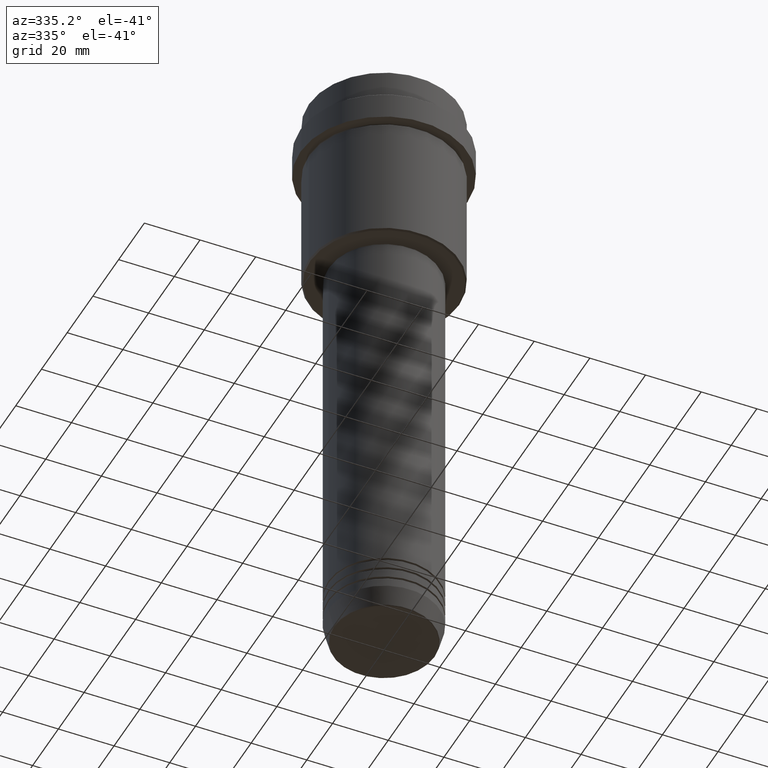
[diagram: clean part render]
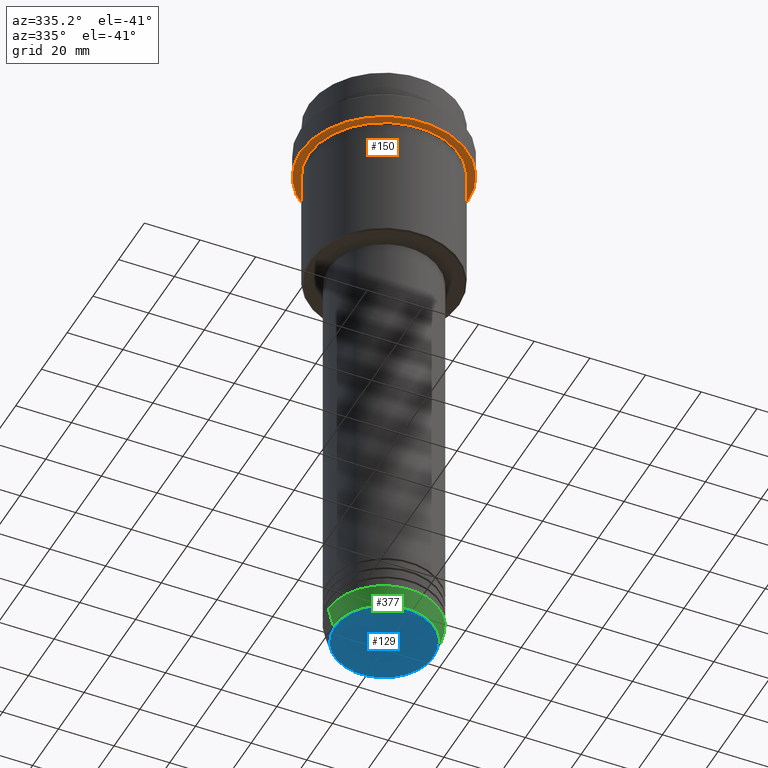
[diagram: same view with three faces highlighted in distinct colors, each labeled with its STEP entity id]
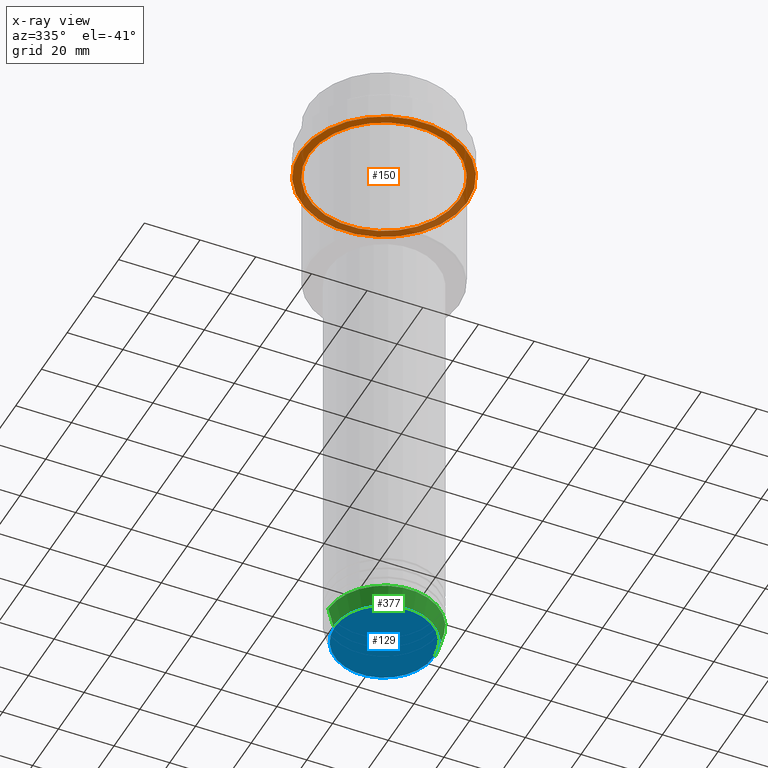
[diagram: x-ray of the same camera — body ghosted, the three highlighted faces saturated]
A machine part, auxiliary view with three faces highlighted in distinct colors.
The next image is the same camera in x-ray (body ghosted, the three faces saturated) — at least one of them is partly hidden behind the body in this view.
Their STEP definitions:

[orange] entity #150 — the highlighted planar face has unit normal (0, 0, -1).
#15 = CIRCLE ( 'NONE', #785, 26.99999999999999289 ) ;
#65 = DIRECTION ( 'NONE',  ( 1.000000000000000000, 0.000000000000000000, 0.000000000000000000 ) ) ;
#76 = CARTESIAN_POINT ( 'NONE',  ( 0.000000000000000000, 0.000000000000000000, -22.00000000000000355 ) ) ;
#104 = ORIENTED_EDGE ( 'NONE', *, *, #400, .T. ) ;
#150 = ADVANCED_FACE ( 'NONE', ( #1247, #1132 ), #355, .T. ) ;
#205 = DIRECTION ( 'NONE',  ( 1.000000000000000000, 0.000000000000000000, 0.000000000000000000 ) ) ;
#222 = DIRECTION ( 'NONE',  ( -1.000000000000000000, 0.000000000000000000, -0.000000000000000000 ) ) ;
#315 = CARTESIAN_POINT ( 'NONE',  ( -29.99999999999999645, 3.673940397442058389E-15, -22.00000000000000355 ) ) ;
#355 = PLANE ( 'NONE',  #1004 ) ;
#373 = CARTESIAN_POINT ( 'NONE',  ( 26.99999999999999289, 3.306546357697852944E-15, -22.00000000000000000 ) ) ;
#400 = EDGE_CURVE ( 'NONE', #1360, #933, #15, .T. ) ;
#408 = VERTEX_POINT ( 'NONE', #745 ) ;
#448 = ORIENTED_EDGE ( 'NONE', *, *, #1216, .T. ) ;
#468 = EDGE_CURVE ( 'NONE', #408, #843, #1175, .T. ) ;
#484 = CIRCLE ( 'NONE', #1291, 26.99999999999999289 ) ;
#516 = DIRECTION ( 'NONE',  ( -0.000000000000000000, -0.000000000000000000, 1.000000000000000000 ) ) ;
#533 = CARTESIAN_POINT ( 'NONE',  ( 0.000000000000000000, 0.000000000000000000, -22.00000000000000000 ) ) ;
#547 = AXIS2_PLACEMENT_3D ( 'NONE', #1167, #1035, #65 ) ;
#687 = EDGE_LOOP ( 'NONE', ( #1087, #1185 ) ) ;
#691 = AXIS2_PLACEMENT_3D ( 'NONE', #76, #955, #205 ) ;
#745 = CARTESIAN_POINT ( 'NONE',  ( 29.99999999999999645, 0.000000000000000000, -22.00000000000000355 ) ) ;
#785 = AXIS2_PLACEMENT_3D ( 'NONE', #533, #1301, #935 ) ;
#787 = EDGE_CURVE ( 'NONE', #843, #408, #1169, .T. ) ;
#843 = VERTEX_POINT ( 'NONE', #315 ) ;
#933 = VERTEX_POINT ( 'NONE', #373 ) ;
#935 = DIRECTION ( 'NONE',  ( -1.000000000000000000, 0.000000000000000000, 0.000000000000000000 ) ) ;
#949 = EDGE_LOOP ( 'NONE', ( #104, #448 ) ) ;
#955 = DIRECTION ( 'NONE',  ( -0.000000000000000000, -0.000000000000000000, 1.000000000000000000 ) ) ;
#1004 = AXIS2_PLACEMENT_3D ( 'NONE', #1362, #1211, #222 ) ;
#1021 = DIRECTION ( 'NONE',  ( -1.000000000000000000, 0.000000000000000000, 0.000000000000000000 ) ) ;
#1035 = DIRECTION ( 'NONE',  ( -0.000000000000000000, -0.000000000000000000, 1.000000000000000000 ) ) ;
#1055 = CARTESIAN_POINT ( 'NONE',  ( 0.000000000000000000, 0.000000000000000000, -22.00000000000000000 ) ) ;
#1087 = ORIENTED_EDGE ( 'NONE', *, *, #468, .F. ) ;
#1132 = FACE_OUTER_BOUND ( 'NONE', #687, .T. ) ;
#1160 = CARTESIAN_POINT ( 'NONE',  ( -26.99999999999999289, 0.000000000000000000, -22.00000000000000000 ) ) ;
#1167 = CARTESIAN_POINT ( 'NONE',  ( 0.000000000000000000, 0.000000000000000000, -22.00000000000000355 ) ) ;
#1169 = CIRCLE ( 'NONE', #547, 29.99999999999999645 ) ;
#1175 = CIRCLE ( 'NONE', #691, 29.99999999999999645 ) ;
#1185 = ORIENTED_EDGE ( 'NONE', *, *, #787, .F. ) ;
#1211 = DIRECTION ( 'NONE',  ( 0.000000000000000000, 0.000000000000000000, -1.000000000000000000 ) ) ;
#1216 = EDGE_CURVE ( 'NONE', #933, #1360, #484, .T. ) ;
#1247 = FACE_BOUND ( 'NONE', #949, .T. ) ;
#1291 = AXIS2_PLACEMENT_3D ( 'NONE', #1055, #516, #1021 ) ;
#1301 = DIRECTION ( 'NONE',  ( -0.000000000000000000, -0.000000000000000000, 1.000000000000000000 ) ) ;
#1360 = VERTEX_POINT ( 'NONE', #1160 ) ;
#1362 = CARTESIAN_POINT ( 'NONE',  ( 0.000000000000000000, 29.99999999999999645, -22.00000000000000000 ) ) ;

[blue] entity #129 — the highlighted planar face has unit normal (0, -0, 1).
#30 = PLANE ( 'NONE',  #594 ) ;
#50 = CIRCLE ( 'NONE', #847, 17.74069215899265473 ) ;
#79 = CARTESIAN_POINT ( 'NONE',  ( 0.000000000000000000, 0.000000000000000000, -222.9999999999999716 ) ) ;
#129 = ADVANCED_FACE ( 'NONE', ( #1140 ), #30, .F. ) ;
#359 = CARTESIAN_POINT ( 'NONE',  ( -17.74069215899265473, 2.202181136001357170E-15, -222.9999999999999716 ) ) ;
#466 = CARTESIAN_POINT ( 'NONE',  ( 0.000000000000000000, 0.000000000000000000, -222.9999999999999716 ) ) ;
#508 = DIRECTION ( 'NONE',  ( 1.000000000000000000, 0.000000000000000000, 0.000000000000000000 ) ) ;
#559 = CARTESIAN_POINT ( 'NONE',  ( 17.74069215899265473, 0.000000000000000000, -222.9999999999999716 ) ) ;
#586 = DIRECTION ( 'NONE',  ( 1.000000000000000000, 0.000000000000000000, 0.000000000000000000 ) ) ;
#594 = AXIS2_PLACEMENT_3D ( 'NONE', #466, #919, #794 ) ;
#610 = CARTESIAN_POINT ( 'NONE',  ( 0.000000000000000000, 0.000000000000000000, -222.9999999999999716 ) ) ;
#645 = VERTEX_POINT ( 'NONE', #559 ) ;
#688 = AXIS2_PLACEMENT_3D ( 'NONE', #79, #1282, #508 ) ;
#737 = CIRCLE ( 'NONE', #688, 17.74069215899265473 ) ;
#749 = VERTEX_POINT ( 'NONE', #359 ) ;
#788 = EDGE_LOOP ( 'NONE', ( #1030, #1137 ) ) ;
#794 = DIRECTION ( 'NONE',  ( 1.000000000000000000, 0.000000000000000000, 0.000000000000000000 ) ) ;
#847 = AXIS2_PLACEMENT_3D ( 'NONE', #610, #1135, #586 ) ;
#919 = DIRECTION ( 'NONE',  ( 0.000000000000000000, -0.000000000000000000, 1.000000000000000000 ) ) ;
#995 = EDGE_CURVE ( 'NONE', #645, #749, #737, .T. ) ;
#1030 = ORIENTED_EDGE ( 'NONE', *, *, #995, .T. ) ;
#1135 = DIRECTION ( 'NONE',  ( 0.000000000000000000, 0.000000000000000000, -1.000000000000000000 ) ) ;
#1137 = ORIENTED_EDGE ( 'NONE', *, *, #1230, .T. ) ;
#1140 = FACE_OUTER_BOUND ( 'NONE', #788, .T. ) ;
#1230 = EDGE_CURVE ( 'NONE', #749, #645, #50, .T. ) ;
#1282 = DIRECTION ( 'NONE',  ( 0.000000000000000000, 0.000000000000000000, -1.000000000000000000 ) ) ;

[green] entity #377 — the highlighted conical surface has half-angle 15 deg.
#35 = ORIENTED_EDGE ( 'NONE', *, *, #185, .T. ) ;
#70 = DIRECTION ( 'NONE',  ( -0.2588190451025213501, 3.169619151431772337E-17, 0.9659258262890680902 ) ) ;
#90 = DIRECTION ( 'NONE',  ( 0.2588190451025213501, 0.000000000000000000, 0.9659258262890680902 ) ) ;
#115 = CIRCLE ( 'NONE', #909, 20.00000000000000000 ) ;
#160 = LINE ( 'NONE', #1363, #1293 ) ;
#185 = EDGE_CURVE ( 'NONE', #1227, #944, #297, .T. ) ;
#217 = ORIENTED_EDGE ( 'NONE', *, *, #1074, .T. ) ;
#297 = LINE ( 'NONE', #960, #1240 ) ;
#304 = CONICAL_SURFACE ( 'NONE', #1025, 20.00000000000000000, 0.2617993877991500740 ) ;
#334 = CARTESIAN_POINT ( 'NONE',  ( 0.000000000000000000, 0.000000000000000000, -215.9999999999999716 ) ) ;
#344 = CARTESIAN_POINT ( 'NONE',  ( -20.00000000000000000, 2.449293598294706513E-15, -215.9999999999999716 ) ) ;
#377 = ADVANCED_FACE ( 'NONE', ( #1077 ), #304, .T. ) ;
#405 = ORIENTED_EDGE ( 'NONE', *, *, #849, .F. ) ;
#455 = CARTESIAN_POINT ( 'NONE',  ( 0.000000000000000000, 0.000000000000000000, -215.9999999999999716 ) ) ;
#673 = VERTEX_POINT ( 'NONE', #344 ) ;
#679 = CARTESIAN_POINT ( 'NONE',  ( -18.22365507213718772, 2.340523841790264718E-15, -222.6294095225512137 ) ) ;
#698 = CARTESIAN_POINT ( 'NONE',  ( 20.00000000000000000, 0.000000000000000000, -215.9999999999999716 ) ) ;
#720 = CARTESIAN_POINT ( 'NONE',  ( 0.000000000000000000, 0.000000000000000000, -222.6294095225512137 ) ) ;
#721 = CARTESIAN_POINT ( 'NONE',  ( 18.22365507213718772, 0.000000000000000000, -222.6294095225512137 ) ) ;
#849 = EDGE_CURVE ( 'NONE', #673, #944, #115, .T. ) ;
#857 = DIRECTION ( 'NONE',  ( 1.000000000000000000, 0.000000000000000000, 0.000000000000000000 ) ) ;
#886 = DIRECTION ( 'NONE',  ( -0.000000000000000000, -0.000000000000000000, 1.000000000000000000 ) ) ;
#909 = AXIS2_PLACEMENT_3D ( 'NONE', #455, #886, #1329 ) ;
#944 = VERTEX_POINT ( 'NONE', #698 ) ;
#960 = CARTESIAN_POINT ( 'NONE',  ( 20.00000000000000000, 0.000000000000000000, -215.9999999999999716 ) ) ;
#1006 = ORIENTED_EDGE ( 'NONE', *, *, #1337, .F. ) ;
#1025 = AXIS2_PLACEMENT_3D ( 'NONE', #334, #1411, #857 ) ;
#1029 = DIRECTION ( 'NONE',  ( -0.000000000000000000, -0.000000000000000000, 1.000000000000000000 ) ) ;
#1074 = EDGE_CURVE ( 'NONE', #1320, #1227, #1075, .T. ) ;
#1075 = CIRCLE ( 'NONE', #1353, 18.22365507213718772 ) ;
#1077 = FACE_OUTER_BOUND ( 'NONE', #1094, .T. ) ;
#1094 = EDGE_LOOP ( 'NONE', ( #1006, #217, #35, #405 ) ) ;
#1227 = VERTEX_POINT ( 'NONE', #721 ) ;
#1240 = VECTOR ( 'NONE', #90, 1000.000000000000000 ) ;
#1293 = VECTOR ( 'NONE', #70, 1000.000000000000000 ) ;
#1320 = VERTEX_POINT ( 'NONE', #679 ) ;
#1329 = DIRECTION ( 'NONE',  ( 1.000000000000000000, 0.000000000000000000, 0.000000000000000000 ) ) ;
#1337 = EDGE_CURVE ( 'NONE', #1320, #673, #160, .T. ) ;
#1353 = AXIS2_PLACEMENT_3D ( 'NONE', #720, #1029, #1371 ) ;
#1363 = CARTESIAN_POINT ( 'NONE',  ( -20.00000000000000000, 2.449293598294706513E-15, -215.9999999999999716 ) ) ;
#1371 = DIRECTION ( 'NONE',  ( 1.000000000000000000, 0.000000000000000000, 0.000000000000000000 ) ) ;
#1411 = DIRECTION ( 'NONE',  ( -0.000000000000000000, -0.000000000000000000, 1.000000000000000000 ) ) ;